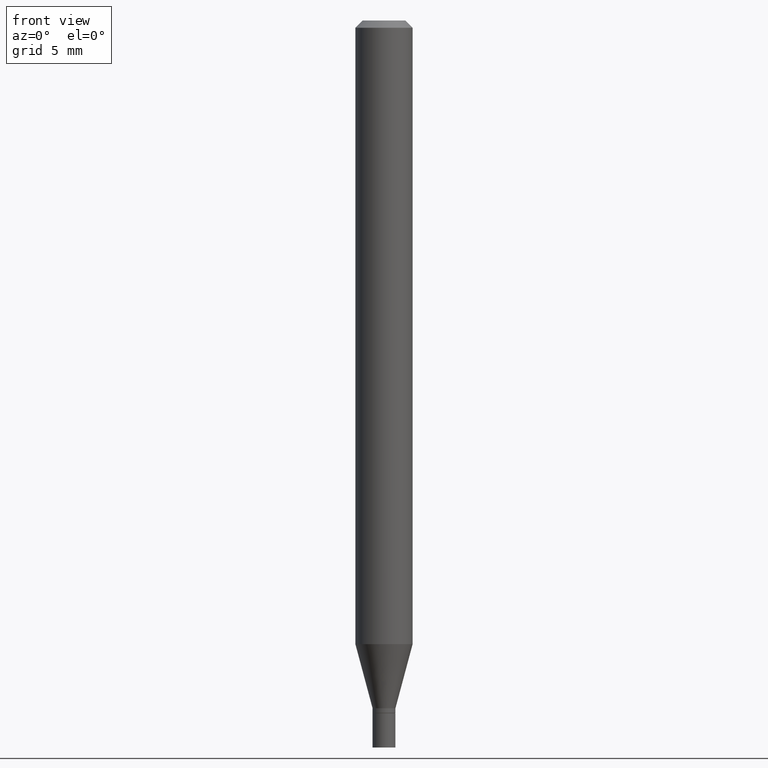
[diagram: clean part render]
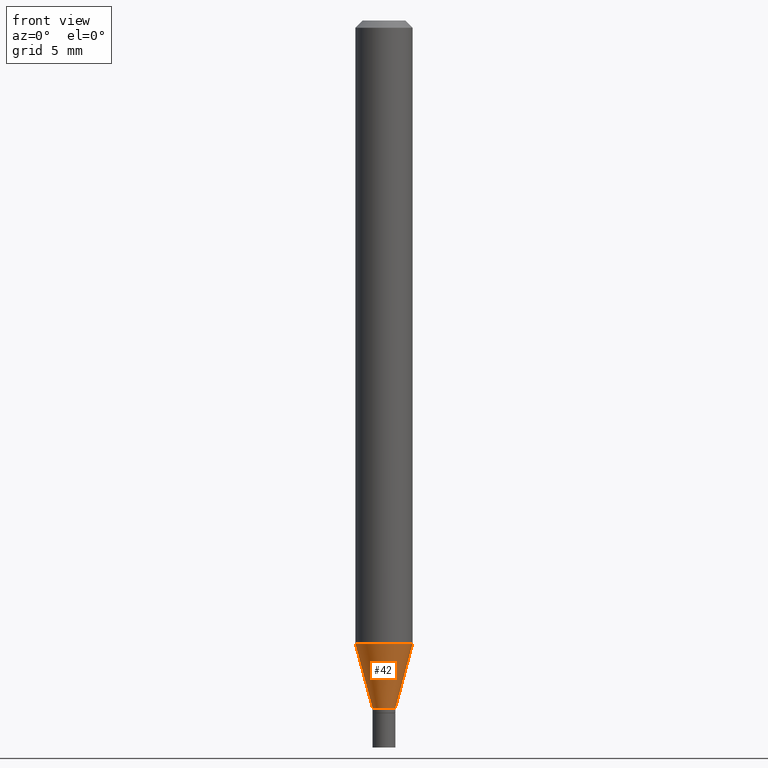
[diagram: same view with one face highlighted and labeled with its STEP entity id]
A machine part, front view. The second image highlights one B-rep face of the part: STEP entity #42.
In plain terms, the highlighted conical surface has half-angle 15 deg.
Its self-contained STEP definition (entity closure, byte-faithful):
#7 = DIRECTION ( 'NONE',  ( -2.445468806185136597E-29, 3.491481338843145583E-15, 1.000000000000000000 ) ) ;
#9 = DIRECTION ( 'NONE',  ( 0.2588190451025211281, 1.565188264969622954E-15, 0.9659258262890679791 ) ) ;
#39 = CONICAL_SURFACE ( 'NONE', #274, 0.02360000000000019374, 0.2617993877991498519 ) ;
#42 = ADVANCED_FACE ( 'NONE', ( #161 ), #39, .T. ) ;
#43 = CARTESIAN_POINT ( 'NONE',  ( 0.02360000000000019374, -5.119209939011821380E-15, -1.419000000000000039 ) ) ;
#52 = DIRECTION ( 'NONE',  ( 1.000000000000000000, -6.982962677686273021E-15, 0.000000000000000000 ) ) ;
#69 = EDGE_CURVE ( 'NONE', #421, #405, #147, .T. ) ;
#72 = VECTOR ( 'NONE', #332, 39.37007874015748854 ) ;
#82 = EDGE_LOOP ( 'NONE', ( #430, #309, #308, #94 ) ) ;
#83 = EDGE_CURVE ( 'NONE', #192, #280, #312, .T. ) ;
#94 = ORIENTED_EDGE ( 'NONE', *, *, #83, .F. ) ;
#95 = DIRECTION ( 'NONE',  ( -2.445468806185136597E-29, 3.491481338843145583E-15, 1.000000000000000000 ) ) ;
#112 = CARTESIAN_POINT ( 'NONE',  ( 0.02360000000000019374, -5.119209939011821380E-15, -1.419000000000000039 ) ) ;
#142 = EDGE_CURVE ( 'NONE', #421, #192, #436, .T. ) ;
#145 = DIRECTION ( 'NONE',  ( 1.000000000000000000, -6.982962677686284065E-15, 0.000000000000000000 ) ) ;
#146 = CARTESIAN_POINT ( 'NONE',  ( -0.05904999999999999832, -4.072909359506036864E-15, -1.286698798871684257 ) ) ;
#147 = CIRCLE ( 'NONE', #208, 0.02360000000000019374 ) ;
#161 = FACE_OUTER_BOUND ( 'NONE', #82, .T. ) ;
#177 = CARTESIAN_POINT ( 'NONE',  ( -0.02360000000000019374, -4.786723934179038657E-15, -1.419000000000000039 ) ) ;
#192 = VERTEX_POINT ( 'NONE', #146 ) ;
#208 = AXIS2_PLACEMENT_3D ( 'NONE', #392, #7, #145 ) ;
#224 = CARTESIAN_POINT ( 'NONE',  ( 0.05904999999999999832, -4.904828791089749700E-15, -1.286698798871684257 ) ) ;
#226 = DIRECTION ( 'NONE',  ( -2.445468806185136597E-29, 3.491481338843145583E-15, 1.000000000000000000 ) ) ;
#274 = AXIS2_PLACEMENT_3D ( 'NONE', #424, #95, #383 ) ;
#280 = VERTEX_POINT ( 'NONE', #224 ) ;
#308 = ORIENTED_EDGE ( 'NONE', *, *, #348, .T. ) ;
#309 = ORIENTED_EDGE ( 'NONE', *, *, #69, .T. ) ;
#312 = CIRCLE ( 'NONE', #394, 0.05904999999999999832 ) ;
#332 = DIRECTION ( 'NONE',  ( -0.2588190451025211281, 5.211531920934547886E-15, 0.9659258262890679791 ) ) ;
#348 = EDGE_CURVE ( 'NONE', #405, #280, #466, .T. ) ;
#353 = CARTESIAN_POINT ( 'NONE',  ( -0.02360000000000019374, -4.429816646842537366E-15, -1.419000000000000039 ) ) ;
#383 = DIRECTION ( 'NONE',  ( 1.000000000000000000, -6.982962677686284065E-15, 0.000000000000000000 ) ) ;
#392 = CARTESIAN_POINT ( 'NONE',  ( 3.470120235976709172E-29, -4.954412019818423555E-15, -1.419000000000000039 ) ) ;
#394 = AXIS2_PLACEMENT_3D ( 'NONE', #440, #226, #52 ) ;
#405 = VERTEX_POINT ( 'NONE', #43 ) ;
#421 = VERTEX_POINT ( 'NONE', #353 ) ;
#424 = CARTESIAN_POINT ( 'NONE',  ( 3.470120235976709172E-29, -4.954412019818423555E-15, -1.419000000000000039 ) ) ;
#428 = VECTOR ( 'NONE', #9, 39.37007874015748854 ) ;
#430 = ORIENTED_EDGE ( 'NONE', *, *, #142, .F. ) ;
#436 = LINE ( 'NONE', #177, #72 ) ;
#440 = CARTESIAN_POINT ( 'NONE',  ( 3.146581775596586990E-29, -4.492484844972376357E-15, -1.286698798871684257 ) ) ;
#466 = LINE ( 'NONE', #112, #428 ) ;